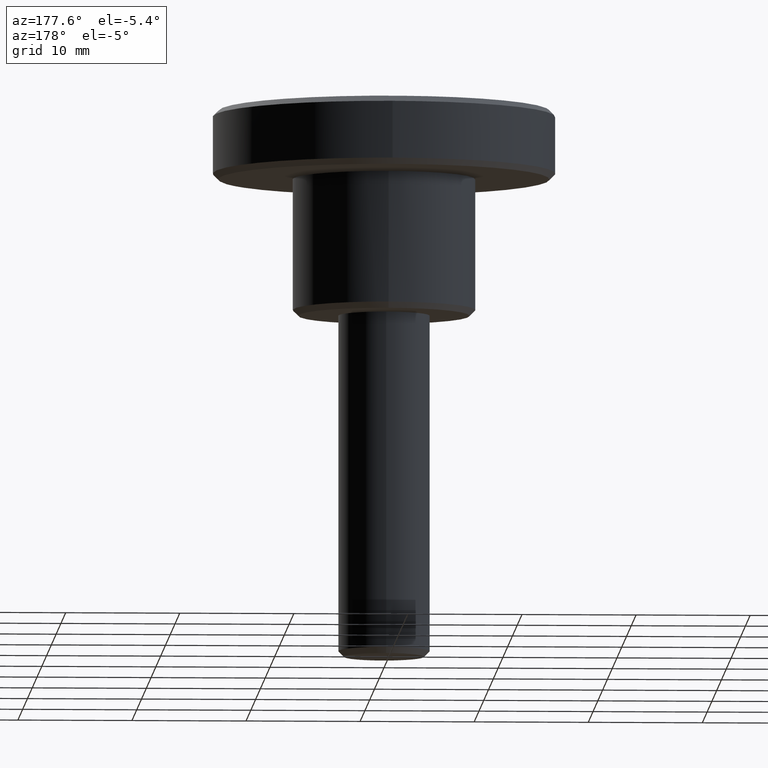
[diagram: clean part render]
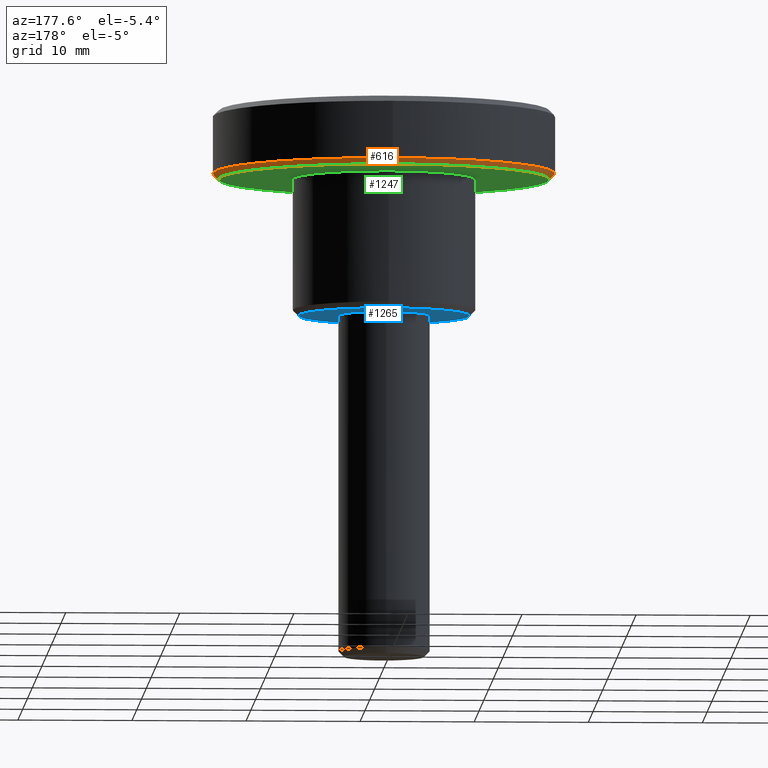
[diagram: same view with three faces highlighted in distinct colors, each labeled with its STEP entity id]
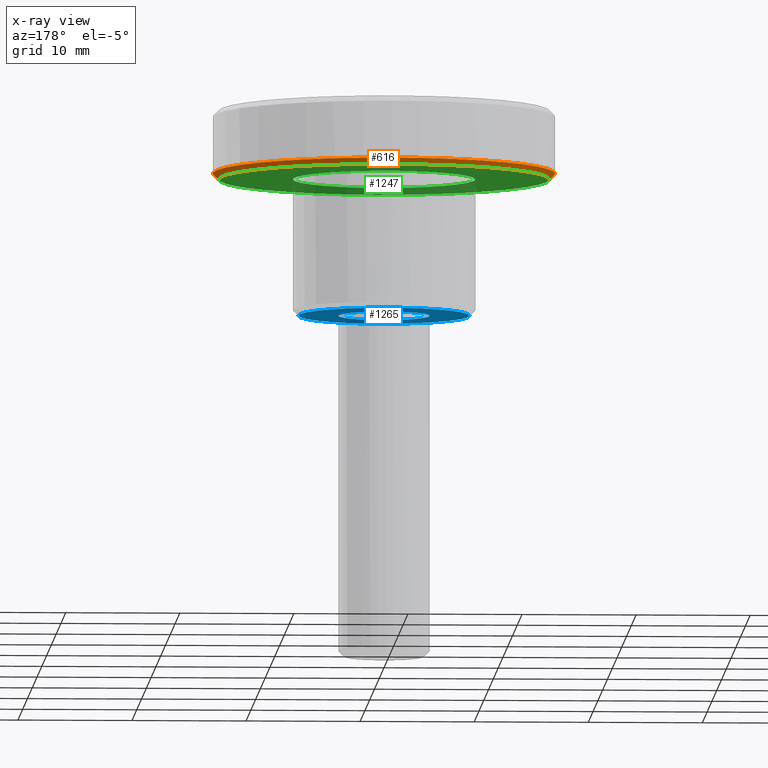
[diagram: x-ray of the same camera — body ghosted, the three highlighted faces saturated]
A machine part, auxiliary view with three faces highlighted in distinct colors.
The next image is the same camera in x-ray (body ghosted, the three faces saturated) — at least one of them is partly hidden behind the body in this view.
Their STEP definitions:

[orange] entity #616 — the highlighted face is a freeform B-spline surface patch.
#461=CARTESIAN_POINT('',(11.863322807898196,-8.315601493915052,11.987500000000006));
#462=CARTESIAN_POINT('',(14.527452271915889,-4.514862863426098,11.987500000000006));
#463=CARTESIAN_POINT('',(14.486948360392180,0.126425683032692,11.987500000000001));
#464=CARTESIAN_POINT('',(14.360522677359487,14.613374043424866,11.987500000000001));
#465=CARTESIAN_POINT('',(-0.126425683032692,14.486948360392180,11.987500000000001));
#466=CARTESIAN_POINT('',(-14.613374043424866,14.360522677359487,11.987500000000001));
#467=CARTESIAN_POINT('',(-14.486948360392180,-0.126425683032692,11.987500000000001));
#468=CARTESIAN_POINT('',(-14.360522677359487,-14.613374043424866,11.987500000000001));
#469=CARTESIAN_POINT('',(0.126425683032692,-14.486948360392180,11.987500000000001));
#470=CARTESIAN_POINT('',(12.293483412731655,-8.617122764650015,12.512812500000011));
#471=CARTESIAN_POINT('',(15.054213429575364,-4.678570466390292,12.512812500000003));
#472=CARTESIAN_POINT('',(15.012240858101890,0.131009841211682,12.512812500000001));
#473=CARTESIAN_POINT('',(14.881231016890208,15.143250699313565,12.512812500000003));
#474=CARTESIAN_POINT('',(-0.131009841211682,15.012240858101890,12.512812500000001));
#475=CARTESIAN_POINT('',(-15.143250699313565,14.881231016890208,12.512812500000003));
#476=CARTESIAN_POINT('',(-15.012240858101890,-0.131009841211682,12.512812500000001));
#477=CARTESIAN_POINT('',(-14.881231016890208,-15.143250699313565,12.512812500000003));
#478=CARTESIAN_POINT('',(0.131009841211682,-15.012240858101890,12.512812500000001));
#486=(BOUNDED_SURFACE()B_SPLINE_SURFACE(2,1,((#461,#470),(#462,#471),(#463,#472),(#464,#473),(#465,#474),(#466,#475),(#467,#476),(#468,#477),(#469,#478)),.UNSPECIFIED.,.F.,.F.,.U.)B_SPLINE_SURFACE_WITH_KNOTS((3,2,2,2,3),(2,2),(0.0,9.949616874982967,34.823659062440392,59.697701249897797,84.571743437355209),(0.0,1.0),.UNSPECIFIED.)GEOMETRIC_REPRESENTATION_ITEM()RATIONAL_B_SPLINE_SURFACE(((0.859411254969543,0.859411254969543),(0.882842712474619,0.882842712474619),(1.0,1.0),(0.707106781186548,0.707106781186548),(1.0,1.0),(0.707106781186548,0.707106781186548),(1.0,1.0),(0.707106781186548,0.707106781186548),(1.0,1.0)))REPRESENTATION_ITEM('')SURFACE());
#487=CARTESIAN_POINT('',(14.500000000000000,0.0,12.0));
#488=VERTEX_POINT('',#487);
#489=CARTESIAN_POINT('',(11.873558634303150,-8.322776301077301,12.000000000000311));
#490=VERTEX_POINT('',#489);
#491=CARTESIAN_POINT('',(14.500000000000000,0.0,12.0));
#492=CARTESIAN_POINT('',(14.499999999999998,-4.575804806589912,12.000000000000007));
#493=CARTESIAN_POINT('',(11.873558634303153,-8.322776301077301,12.000000000000307));
#501=(BOUNDED_CURVE()B_SPLINE_CURVE(2,(#491,#492,#493),.UNSPECIFIED.,.F.,.U.)B_SPLINE_CURVE_WITH_KNOTS((3,3),(0.0,0.098673726203025),.UNSPECIFIED.)CURVE()GEOMETRIC_REPRESENTATION_ITEM()RATIONAL_B_SPLINE_CURVE((1.0,0.884396538880315,0.860049271925796))REPRESENTATION_ITEM(''));
#502=EDGE_CURVE('',#488,#490,#501,.T.);
#503=ORIENTED_EDGE('',*,*,#502,.F.);
#504=CARTESIAN_POINT('',(-14.500000000000000,0.0,12.0));
#505=VERTEX_POINT('',#504);
#506=CARTESIAN_POINT('',(-14.500000000000000,0.0,12.0));
#507=CARTESIAN_POINT('',(-14.500000000000000,14.500000000000000,12.0));
#508=CARTESIAN_POINT('',(0.0,14.500000000000000,12.0));
#509=CARTESIAN_POINT('',(14.500000000000000,14.500000000000000,12.0));
#510=CARTESIAN_POINT('',(14.500000000000000,0.0,12.0));
#518=(BOUNDED_CURVE()B_SPLINE_CURVE(2,(#506,#507,#508,#509,#510),.UNSPECIFIED.,.F.,.U.)B_SPLINE_CURVE_WITH_KNOTS((3,2,3),(0.500000000000000,0.750000000000000,1.0),.UNSPECIFIED.)CURVE()GEOMETRIC_REPRESENTATION_ITEM()RATIONAL_B_SPLINE_CURVE((1.0,0.707106781186548,1.0,0.707106781186548,1.0))REPRESENTATION_ITEM(''));
#519=EDGE_CURVE('',#505,#488,#518,.T.);
#520=ORIENTED_EDGE('',*,*,#519,.F.);
#521=CARTESIAN_POINT('',(0.126534764776504,-14.499447884436851,12.000000000006811));
#522=VERTEX_POINT('',#521);
#523=CARTESIAN_POINT('',(0.126534764776504,-14.499447884436854,12.000000000006807));
#524=CARTESIAN_POINT('',(0.063268586950198,-14.500000000000000,12.000000000000002));
#525=CARTESIAN_POINT('',(0.0,-14.500000000000000,12.0));
#526=CARTESIAN_POINT('',(-14.500000000000000,-14.500000000000000,12.0));
#527=CARTESIAN_POINT('',(-14.500000000000000,0.0,12.0));
#535=(BOUNDED_CURVE()B_SPLINE_CURVE(2,(#523,#524,#525,#526,#527),.UNSPECIFIED.,.F.,.U.)B_SPLINE_CURVE_WITH_KNOTS((3,2,3),(0.248460105663798,0.250000000000000,0.500000000000000),.UNSPECIFIED.)CURVE()GEOMETRIC_REPRESENTATION_ITEM()RATIONAL_B_SPLINE_CURVE((0.996414028097593,0.998195901564948,1.0,0.707106781186548,1.0))REPRESENTATION_ITEM(''));
#536=EDGE_CURVE('',#522,#505,#535,.T.);
#537=ORIENTED_EDGE('',*,*,#536,.F.);
#538=CARTESIAN_POINT('',(0.130898032475798,-14.999428845962610,12.500000000000011));
#539=VERTEX_POINT('',#538);
#540=CARTESIAN_POINT('',(0.126534764776504,-14.499447884436851,12.000000000006811));
#541=CARTESIAN_POINT('',(0.130898032475798,-14.999428845962610,12.500000000000011));
#542=QUASI_UNIFORM_CURVE('',1,(#540,#541),.UNSPECIFIED.,.F.,.U.);
#543=EDGE_CURVE('',#522,#539,#542,.T.);
#544=ORIENTED_EDGE('',*,*,#543,.T.);
#545=CARTESIAN_POINT('',(-15.0,0.0,12.500000000000000));
#546=VERTEX_POINT('',#545);
#547=CARTESIAN_POINT('',(-15.0,0.0,12.500000000000000));
#548=CARTESIAN_POINT('',(-14.999999999999996,-14.999999999999996,12.499999999999998));
#549=CARTESIAN_POINT('',(0.0,-15.0,12.500000000000000));
#550=CARTESIAN_POINT('',(0.065450262310713,-14.999999999999998,12.500000000000005));
#551=CARTESIAN_POINT('',(0.130898032475798,-14.999428845962608,12.500000000000016));
#559=(BOUNDED_CURVE()B_SPLINE_CURVE(2,(#547,#548,#549,#550,#551),.UNSPECIFIED.,.F.,.U.)B_SPLINE_CURVE_WITH_KNOTS((3,2,3),(0.0,0.250000000000000,0.251539894334992),.UNSPECIFIED.)CURVE()GEOMETRIC_REPRESENTATION_ITEM()RATIONAL_B_SPLINE_CURVE((1.0,0.707106781186547,1.0,0.998195901566367,0.996414028100395))REPRESENTATION_ITEM(''));
#560=EDGE_CURVE('',#546,#539,#559,.T.);
#561=ORIENTED_EDGE('',*,*,#560,.F.);
#562=CARTESIAN_POINT('',(-0.130883431942157,14.999428973365280,12.500000000000000));
#563=VERTEX_POINT('',#562);
#564=CARTESIAN_POINT('',(-0.130883431942157,14.999428973365275,12.499999999999996));
#565=CARTESIAN_POINT('',(-15.0,14.869682633706313,12.499999999999998));
#566=CARTESIAN_POINT('',(-15.0,0.0,12.500000000000000));
#574=(BOUNDED_CURVE()B_SPLINE_CURVE(2,(#564,#565,#566),.UNSPECIFIED.,.F.,.U.)B_SPLINE_CURVE_WITH_KNOTS((3,3),(0.751539722876523,1.0),.UNSPECIFIED.)CURVE()GEOMETRIC_REPRESENTATION_ITEM()RATIONAL_B_SPLINE_CURVE((0.996414424903605,0.708910678744090,1.0))REPRESENTATION_ITEM(''));
#575=EDGE_CURVE('',#563,#546,#574,.T.);
#576=ORIENTED_EDGE('',*,*,#575,.F.);
#577=CARTESIAN_POINT('',(15.0,0.0,12.500000000000000));
#578=VERTEX_POINT('',#577);
#579=CARTESIAN_POINT('',(15.0,0.0,12.500000000000000));
#580=CARTESIAN_POINT('',(14.999999999999996,14.999999999999996,12.499999999999998));
#581=CARTESIAN_POINT('',(0.0,15.0,12.500000000000000));
#582=CARTESIAN_POINT('',(-0.065442961626901,14.999999999999998,12.500000000000002));
#583=CARTESIAN_POINT('',(-0.130883431942157,14.999428973365275,12.499999999999996));
#591=(BOUNDED_CURVE()B_SPLINE_CURVE(2,(#579,#580,#581,#582,#583),.UNSPECIFIED.,.F.,.U.)B_SPLINE_CURVE_WITH_KNOTS((3,2,3),(0.500000000000000,0.750000000000000,0.751539722876523),.UNSPECIFIED.)CURVE()GEOMETRIC_REPRESENTATION_ITEM()RATIONAL_B_SPLINE_CURVE((1.0,0.707106781186547,1.0,0.998196102442457,0.996414424903605))REPRESENTATION_ITEM(''));
#592=EDGE_CURVE('',#578,#563,#591,.T.);
#593=ORIENTED_EDGE('',*,*,#592,.F.);
#594=CARTESIAN_POINT('',(12.282991690657370,-8.609768587323028,12.500000000000391));
#595=VERTEX_POINT('',#594);
#596=CARTESIAN_POINT('',(12.282991690657379,-8.609768587323028,12.500000000000391));
#597=CARTESIAN_POINT('',(15.0,-4.733591179233125,12.499999999999998));
#598=CARTESIAN_POINT('',(15.0,0.0,12.500000000000000));
#606=(BOUNDED_CURVE()B_SPLINE_CURVE(2,(#596,#597,#598),.UNSPECIFIED.,.F.,.U.)B_SPLINE_CURVE_WITH_KNOTS((3,3),(0.401326273796934,0.500000000000000),.UNSPECIFIED.)CURVE()GEOMETRIC_REPRESENTATION_ITEM()RATIONAL_B_SPLINE_CURVE((0.860049271925776,0.884396538880267,1.0))REPRESENTATION_ITEM(''));
#607=EDGE_CURVE('',#595,#578,#606,.T.);
#608=ORIENTED_EDGE('',*,*,#607,.F.);
#609=CARTESIAN_POINT('',(11.873558634303150,-8.322776301077301,12.000000000000311));
#610=CARTESIAN_POINT('',(12.282991690657370,-8.609768587323028,12.500000000000391));
#611=QUASI_UNIFORM_CURVE('',1,(#609,#610),.UNSPECIFIED.,.F.,.U.);
#612=EDGE_CURVE('',#490,#595,#611,.T.);
#613=ORIENTED_EDGE('',*,*,#612,.F.);
#614=EDGE_LOOP('',(#503,#520,#537,#544,#561,#576,#593,#608,#613));
#615=FACE_OUTER_BOUND('',#614,.T.);
#616=ADVANCED_FACE('',(#615),#486,.T.);

[blue] entity #1265 — the highlighted face is a freeform B-spline surface patch.
#718=CARTESIAN_POINT('',(-3.031615739917711,-6.859978571795588,7.639630E-013));
#719=VERTEX_POINT('',#718);
#725=CARTESIAN_POINT('',(7.500000000000000,0.0,0.0));
#726=VERTEX_POINT('',#725);
#727=CARTESIAN_POINT('',(7.500000000000000,0.0,0.0));
#728=CARTESIAN_POINT('',(7.500000000000000,-7.500000000000000,0.0));
#729=CARTESIAN_POINT('',(0.0,-7.500000000000000,0.0));
#730=CARTESIAN_POINT('',(-1.583367129398663,-7.500000000000000,0.0));
#731=CARTESIAN_POINT('',(-3.031615739917711,-6.859978571795588,7.639630E-013));
#739=(BOUNDED_CURVE()B_SPLINE_CURVE(2,(#727,#728,#729,#730,#731),.UNSPECIFIED.,.F.,.U.)B_SPLINE_CURVE_WITH_KNOTS((3,2,3),(0.500000000000000,0.750000000000000,0.818638421540447),.UNSPECIFIED.)CURVE()GEOMETRIC_REPRESENTATION_ITEM()RATIONAL_B_SPLINE_CURVE((1.0,0.707106781186547,1.0,0.919585087122975,0.883326595751483))REPRESENTATION_ITEM(''));
#740=EDGE_CURVE('',#726,#719,#739,.T.);
#742=CARTESIAN_POINT('',(-0.065449040628790,7.499714432673045,9.904241E-009));
#743=VERTEX_POINT('',#742);
#744=CARTESIAN_POINT('',(-0.065449040628790,7.499714432673045,9.904241E-009));
#745=CARTESIAN_POINT('',(-0.032725155461206,7.500000000000000,0.0));
#746=CARTESIAN_POINT('',(0.0,7.500000000000000,0.0));
#747=CARTESIAN_POINT('',(7.500000000000000,7.500000000000000,0.0));
#748=CARTESIAN_POINT('',(7.500000000000000,0.0,0.0));
#756=(BOUNDED_CURVE()B_SPLINE_CURVE(2,(#744,#745,#746,#747,#748),.UNSPECIFIED.,.F.,.U.)B_SPLINE_CURVE_WITH_KNOTS((3,2,3),(0.248460104523350,0.250000000000000,0.500000000000000),.UNSPECIFIED.)CURVE()GEOMETRIC_REPRESENTATION_ITEM()RATIONAL_B_SPLINE_CURVE((0.996414025458279,0.998195900228831,1.0,0.707106781186547,1.0))REPRESENTATION_ITEM(''));
#757=EDGE_CURVE('',#743,#726,#756,.T.);
#846=CARTESIAN_POINT('',(-7.500000000000000,0.0,0.0));
#847=VERTEX_POINT('',#846);
#848=CARTESIAN_POINT('',(-7.500000000000000,0.0,0.0));
#849=CARTESIAN_POINT('',(-7.499999999999999,7.434834031271913,0.0));
#850=CARTESIAN_POINT('',(-0.065449040628790,7.499714432673045,9.904241E-009));
#858=(BOUNDED_CURVE()B_SPLINE_CURVE(2,(#848,#849,#850),.UNSPECIFIED.,.F.,.U.)B_SPLINE_CURVE_WITH_KNOTS((3,3),(0.0,0.248460104523350),.UNSPECIFIED.)CURVE()GEOMETRIC_REPRESENTATION_ITEM()RATIONAL_B_SPLINE_CURVE((1.0,0.708910880957716,0.996414025458279))REPRESENTATION_ITEM(''));
#859=EDGE_CURVE('',#847,#743,#858,.T.);
#861=CARTESIAN_POINT('',(-3.031615739917711,-6.859978571795588,7.639630E-013));
#862=CARTESIAN_POINT('',(-7.500000000000000,-4.885275019424205,0.0));
#863=CARTESIAN_POINT('',(-7.500000000000000,0.0,0.0));
#871=(BOUNDED_CURVE()B_SPLINE_CURVE(2,(#861,#862,#863),.UNSPECIFIED.,.F.,.U.)B_SPLINE_CURVE_WITH_KNOTS((3,3),(0.818638421540446,1.0),.UNSPECIFIED.)CURVE()GEOMETRIC_REPRESENTATION_ITEM()RATIONAL_B_SPLINE_CURVE((0.883326595751484,0.787521694063571,1.0))REPRESENTATION_ITEM(''));
#872=EDGE_CURVE('',#719,#847,#871,.T.);
#902=CARTESIAN_POINT('',(-0.034906142036747,3.999847692256307,4.440892E-016));
#903=VERTEX_POINT('',#902);
#909=CARTESIAN_POINT('',(4.0,0.0,0.0));
#910=VERTEX_POINT('',#909);
#911=CARTESIAN_POINT('',(-0.034906142036747,3.999847692256307,4.440892E-016));
#912=CARTESIAN_POINT('',(-0.017453403326060,4.000000000000001,0.0));
#913=CARTESIAN_POINT('',(0.0,4.0,0.0));
#914=CARTESIAN_POINT('',(4.000000000000000,4.000000000000000,0.0));
#915=CARTESIAN_POINT('',(4.0,0.0,0.0));
#923=(BOUNDED_CURVE()B_SPLINE_CURVE(2,(#911,#912,#913,#914,#915),.UNSPECIFIED.,.F.,.U.)B_SPLINE_CURVE_WITH_KNOTS((3,2,3),(0.248460105661204,0.250000000000000,0.500000000000000),.UNSPECIFIED.)CURVE()GEOMETRIC_REPRESENTATION_ITEM()RATIONAL_B_SPLINE_CURVE((0.996414028091590,0.998195901561909,1.0,0.707106781186548,1.0))REPRESENTATION_ITEM(''));
#924=EDGE_CURVE('',#903,#910,#923,.T.);
#926=CARTESIAN_POINT('',(0.496506837839969,-3.969065502098825,4.640983E-016));
#927=VERTEX_POINT('',#926);
#928=CARTESIAN_POINT('',(4.0,0.0,0.0));
#929=CARTESIAN_POINT('',(4.0,-3.530799035998779,0.0));
#930=CARTESIAN_POINT('',(0.496506837839969,-3.969065502098824,4.640983E-016));
#938=(BOUNDED_CURVE()B_SPLINE_CURVE(2,(#928,#929,#930),.UNSPECIFIED.,.F.,.U.)B_SPLINE_CURVE_WITH_KNOTS((3,3),(0.500000000000000,0.728526290723451),.UNSPECIFIED.)CURVE()GEOMETRIC_REPRESENTATION_ITEM()RATIONAL_B_SPLINE_CURVE((1.0,0.732264796506039,0.954005856616583))REPRESENTATION_ITEM(''));
#939=EDGE_CURVE('',#910,#927,#938,.T.);
#974=CARTESIAN_POINT('',(-4.0,0.0,0.0));
#975=VERTEX_POINT('',#974);
#976=CARTESIAN_POINT('',(0.496506837839969,-3.969065502098824,4.640983E-016));
#977=CARTESIAN_POINT('',(0.249217094631442,-4.0,0.0));
#978=CARTESIAN_POINT('',(0.0,-4.0,0.0));
#979=CARTESIAN_POINT('',(-4.000000000000000,-4.000000000000000,0.0));
#980=CARTESIAN_POINT('',(-4.0,0.0,0.0));
#988=(BOUNDED_CURVE()B_SPLINE_CURVE(2,(#976,#977,#978,#979,#980),.UNSPECIFIED.,.F.,.U.)B_SPLINE_CURVE_WITH_KNOTS((3,2,3),(0.728526290723451,0.750000000000000,1.0),.UNSPECIFIED.)CURVE()GEOMETRIC_REPRESENTATION_ITEM()RATIONAL_B_SPLINE_CURVE((0.954005856616583,0.974841984680509,1.0,0.707106781186548,1.0))REPRESENTATION_ITEM(''));
#989=EDGE_CURVE('',#927,#975,#988,.T.);
#991=CARTESIAN_POINT('',(-4.0,0.0,0.0));
#992=CARTESIAN_POINT('',(-4.0,3.965244842294154,0.0));
#993=CARTESIAN_POINT('',(-0.034906142036747,3.999847692256306,4.440892E-016));
#1001=(BOUNDED_CURVE()B_SPLINE_CURVE(2,(#991,#992,#993),.UNSPECIFIED.,.F.,.U.)B_SPLINE_CURVE_WITH_KNOTS((3,3),(0.0,0.248460105661204),.UNSPECIFIED.)CURVE()GEOMETRIC_REPRESENTATION_ITEM()RATIONAL_B_SPLINE_CURVE((1.0,0.708910879624639,0.996414028091590))REPRESENTATION_ITEM(''));
#1002=EDGE_CURVE('',#975,#903,#1001,.T.);
#1248=CARTESIAN_POINT('',(-8.249249970927089,8.248884432408188,0.0));
#1249=CARTESIAN_POINT('',(8.249250373258443,8.248884432408188,0.0));
#1250=CARTESIAN_POINT('',(-8.249249970927089,-8.247853927704668,0.0));
#1251=CARTESIAN_POINT('',(8.249250373258443,-8.247853927704668,0.0));
#1252=B_SPLINE_SURFACE_WITH_KNOTS('',1,1,((#1248,#1250),(#1249,#1251)),.UNSPECIFIED.,.F.,.F.,.U.,(2,2),(2,2),(0.0,16.498500344185530),(0.0,16.496738360112861),.UNSPECIFIED.);
#1253=ORIENTED_EDGE('',*,*,#859,.T.);
#1254=ORIENTED_EDGE('',*,*,#757,.T.);
#1255=ORIENTED_EDGE('',*,*,#740,.T.);
#1256=ORIENTED_EDGE('',*,*,#872,.T.);
#1257=EDGE_LOOP('',(#1253,#1254,#1255,#1256));
#1258=FACE_OUTER_BOUND('',#1257,.T.);
#1259=ORIENTED_EDGE('',*,*,#1002,.F.);
#1260=ORIENTED_EDGE('',*,*,#989,.F.);
#1261=ORIENTED_EDGE('',*,*,#939,.F.);
#1262=ORIENTED_EDGE('',*,*,#924,.F.);
#1263=EDGE_LOOP('',(#1259,#1260,#1261,#1262));
#1264=FACE_BOUND('',#1263,.T.);
#1265=ADVANCED_FACE('',(#1258,#1264),#1252,.T.);

[green] entity #1247 — the highlighted face is a freeform B-spline surface patch.
#487=CARTESIAN_POINT('',(14.500000000000000,0.0,12.0));
#488=VERTEX_POINT('',#487);
#489=CARTESIAN_POINT('',(11.873558634303150,-8.322776301077301,12.000000000000311));
#490=VERTEX_POINT('',#489);
#491=CARTESIAN_POINT('',(14.500000000000000,0.0,12.0));
#492=CARTESIAN_POINT('',(14.499999999999998,-4.575804806589912,12.000000000000007));
#493=CARTESIAN_POINT('',(11.873558634303153,-8.322776301077301,12.000000000000307));
#501=(BOUNDED_CURVE()B_SPLINE_CURVE(2,(#491,#492,#493),.UNSPECIFIED.,.F.,.U.)B_SPLINE_CURVE_WITH_KNOTS((3,3),(0.0,0.098673726203025),.UNSPECIFIED.)CURVE()GEOMETRIC_REPRESENTATION_ITEM()RATIONAL_B_SPLINE_CURVE((1.0,0.884396538880315,0.860049271925796))REPRESENTATION_ITEM(''));
#502=EDGE_CURVE('',#488,#490,#501,.T.);
#504=CARTESIAN_POINT('',(-14.500000000000000,0.0,12.0));
#505=VERTEX_POINT('',#504);
#506=CARTESIAN_POINT('',(-14.500000000000000,0.0,12.0));
#507=CARTESIAN_POINT('',(-14.500000000000000,14.500000000000000,12.0));
#508=CARTESIAN_POINT('',(0.0,14.500000000000000,12.0));
#509=CARTESIAN_POINT('',(14.500000000000000,14.500000000000000,12.0));
#510=CARTESIAN_POINT('',(14.500000000000000,0.0,12.0));
#518=(BOUNDED_CURVE()B_SPLINE_CURVE(2,(#506,#507,#508,#509,#510),.UNSPECIFIED.,.F.,.U.)B_SPLINE_CURVE_WITH_KNOTS((3,2,3),(0.500000000000000,0.750000000000000,1.0),.UNSPECIFIED.)CURVE()GEOMETRIC_REPRESENTATION_ITEM()RATIONAL_B_SPLINE_CURVE((1.0,0.707106781186548,1.0,0.707106781186548,1.0))REPRESENTATION_ITEM(''));
#519=EDGE_CURVE('',#505,#488,#518,.T.);
#521=CARTESIAN_POINT('',(0.126534764776504,-14.499447884436851,12.000000000006811));
#522=VERTEX_POINT('',#521);
#523=CARTESIAN_POINT('',(0.126534764776504,-14.499447884436854,12.000000000006807));
#524=CARTESIAN_POINT('',(0.063268586950198,-14.500000000000000,12.000000000000002));
#525=CARTESIAN_POINT('',(0.0,-14.500000000000000,12.0));
#526=CARTESIAN_POINT('',(-14.500000000000000,-14.500000000000000,12.0));
#527=CARTESIAN_POINT('',(-14.500000000000000,0.0,12.0));
#535=(BOUNDED_CURVE()B_SPLINE_CURVE(2,(#523,#524,#525,#526,#527),.UNSPECIFIED.,.F.,.U.)B_SPLINE_CURVE_WITH_KNOTS((3,2,3),(0.248460105663798,0.250000000000000,0.500000000000000),.UNSPECIFIED.)CURVE()GEOMETRIC_REPRESENTATION_ITEM()RATIONAL_B_SPLINE_CURVE((0.996414028097593,0.998195901564948,1.0,0.707106781186548,1.0))REPRESENTATION_ITEM(''));
#536=EDGE_CURVE('',#522,#505,#535,.T.);
#631=CARTESIAN_POINT('',(11.873558634303153,-8.322776301077301,12.000000000000307));
#632=CARTESIAN_POINT('',(7.589670654127041,-14.434318084167721,12.0));
#633=CARTESIAN_POINT('',(0.126534764776504,-14.499447884436851,12.000000000006805));
#641=(BOUNDED_CURVE()B_SPLINE_CURVE(2,(#631,#632,#633),.UNSPECIFIED.,.F.,.U.)B_SPLINE_CURVE_WITH_KNOTS((3,3),(0.098673726203025,0.248460105663798),.UNSPECIFIED.)CURVE()GEOMETRIC_REPRESENTATION_ITEM()RATIONAL_B_SPLINE_CURVE((0.860049271925796,0.823090203821096,0.996414028097593))REPRESENTATION_ITEM(''));
#642=EDGE_CURVE('',#490,#522,#641,.T.);
#1029=CARTESIAN_POINT('',(-0.069811153386792,7.999695394379808,12.0));
#1030=VERTEX_POINT('',#1029);
#1036=CARTESIAN_POINT('',(8.0,0.0,12.0));
#1037=VERTEX_POINT('',#1036);
#1038=CARTESIAN_POINT('',(-0.069811153386792,7.999695394379808,12.000000000000005));
#1039=CARTESIAN_POINT('',(-0.034906241233225,8.0,11.999999999999996));
#1040=CARTESIAN_POINT('',(0.0,8.0,12.0));
#1041=CARTESIAN_POINT('',(8.0,8.0,12.0));
#1042=CARTESIAN_POINT('',(8.0,0.0,12.0));
#1050=(BOUNDED_CURVE()B_SPLINE_CURVE(2,(#1038,#1039,#1040,#1041,#1042),.UNSPECIFIED.,.F.,.U.)B_SPLINE_CURVE_WITH_KNOTS((3,2,3),(0.248460130559344,0.250000000000000,0.500000000000000),.UNSPECIFIED.)CURVE()GEOMETRIC_REPRESENTATION_ITEM()RATIONAL_B_SPLINE_CURVE((0.996414085712869,0.998195930731895,1.0,0.707106781186548,1.0))REPRESENTATION_ITEM(''));
#1051=EDGE_CURVE('',#1030,#1037,#1050,.T.);
#1053=CARTESIAN_POINT('',(0.993014885542910,-7.938130852852295,12.0));
#1054=VERTEX_POINT('',#1053);
#1055=CARTESIAN_POINT('',(8.0,0.0,12.0));
#1056=CARTESIAN_POINT('',(8.0,-7.061596987340240,12.000000000000002));
#1057=CARTESIAN_POINT('',(0.993014885542910,-7.938130852852295,11.999999999999998));
#1065=(BOUNDED_CURVE()B_SPLINE_CURVE(2,(#1055,#1056,#1057),.UNSPECIFIED.,.F.,.U.)B_SPLINE_CURVE_WITH_KNOTS((3,3),(0.500000000000000,0.728526265019854),.UNSPECIFIED.)CURVE()GEOMETRIC_REPRESENTATION_ITEM()RATIONAL_B_SPLINE_CURVE((1.0,0.732264826619676,0.954005806735739))REPRESENTATION_ITEM(''));
#1066=EDGE_CURVE('',#1037,#1054,#1065,.T.);
#1101=CARTESIAN_POINT('',(-8.0,0.0,12.0));
#1102=VERTEX_POINT('',#1101);
#1103=CARTESIAN_POINT('',(0.993014885542910,-7.938130852852295,11.999999999999998));
#1104=CARTESIAN_POINT('',(0.498434801275598,-8.0,12.0));
#1105=CARTESIAN_POINT('',(0.0,-8.0,12.0));
#1106=CARTESIAN_POINT('',(-8.0,-8.0,12.0));
#1107=CARTESIAN_POINT('',(-8.0,0.0,12.0));
#1115=(BOUNDED_CURVE()B_SPLINE_CURVE(2,(#1103,#1104,#1105,#1106,#1107),.UNSPECIFIED.,.F.,.U.)B_SPLINE_CURVE_WITH_KNOTS((3,2,3),(0.728526265019854,0.750000000000000,1.0),.UNSPECIFIED.)CURVE()GEOMETRIC_REPRESENTATION_ITEM()RATIONAL_B_SPLINE_CURVE((0.954005806735739,0.974841954566872,1.0,0.707106781186548,1.0))REPRESENTATION_ITEM(''));
#1116=EDGE_CURVE('',#1054,#1102,#1115,.T.);
#1118=CARTESIAN_POINT('',(-8.0,0.0,12.0));
#1119=CARTESIAN_POINT('',(-8.0,7.930490805621911,12.000000000000002));
#1120=CARTESIAN_POINT('',(-0.069811153386792,7.999695394379808,12.000000000000005));
#1128=(BOUNDED_CURVE()B_SPLINE_CURVE(2,(#1118,#1119,#1120),.UNSPECIFIED.,.F.,.U.)B_SPLINE_CURVE_WITH_KNOTS((3,3),(0.0,0.248460130559344),.UNSPECIFIED.)CURVE()GEOMETRIC_REPRESENTATION_ITEM()RATIONAL_B_SPLINE_CURVE((1.0,0.708910850454652,0.996414085712869))REPRESENTATION_ITEM(''));
#1129=EDGE_CURVE('',#1102,#1030,#1128,.T.);
#1230=CARTESIAN_POINT('',(-15.948549943792370,-15.947970363458980,12.0));
#1231=CARTESIAN_POINT('',(15.948550721632991,-15.947970363458980,12.0));
#1232=CARTESIAN_POINT('',(-15.948549943792370,15.948523148855550,12.0));
#1233=CARTESIAN_POINT('',(15.948550721632991,15.948523148855550,12.0));
#1234=B_SPLINE_SURFACE_WITH_KNOTS('',1,1,((#1230,#1232),(#1231,#1233)),.UNSPECIFIED.,.F.,.F.,.U.,(2,2),(2,2),(0.0,31.897100665425359),(0.0,31.896493512314532),.UNSPECIFIED.);
#1235=ORIENTED_EDGE('',*,*,#502,.T.);
#1236=ORIENTED_EDGE('',*,*,#642,.T.);
#1237=ORIENTED_EDGE('',*,*,#536,.T.);
#1238=ORIENTED_EDGE('',*,*,#519,.T.);
#1239=EDGE_LOOP('',(#1235,#1236,#1237,#1238));
#1240=FACE_OUTER_BOUND('',#1239,.T.);
#1241=ORIENTED_EDGE('',*,*,#1129,.F.);
#1242=ORIENTED_EDGE('',*,*,#1116,.F.);
#1243=ORIENTED_EDGE('',*,*,#1066,.F.);
#1244=ORIENTED_EDGE('',*,*,#1051,.F.);
#1245=EDGE_LOOP('',(#1241,#1242,#1243,#1244));
#1246=FACE_BOUND('',#1245,.T.);
#1247=ADVANCED_FACE('',(#1240,#1246),#1234,.F.);